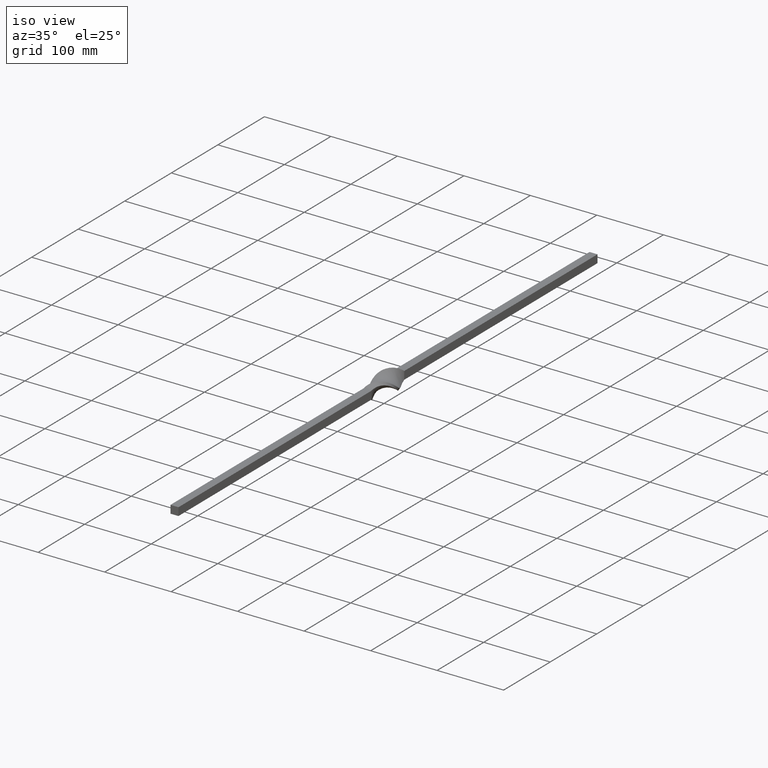
[diagram: clean part render]
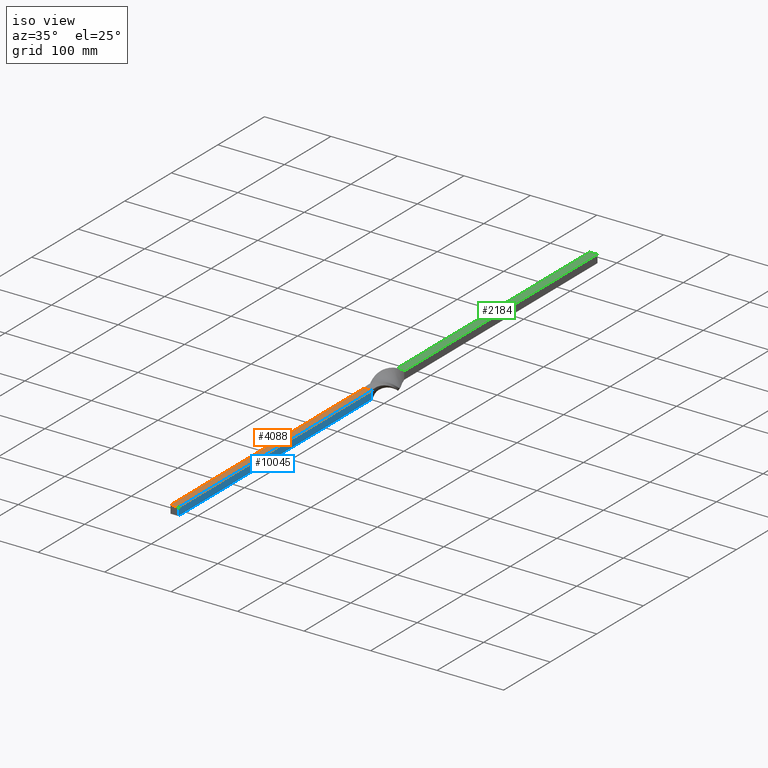
[diagram: same view with three faces highlighted in distinct colors, each labeled with its STEP entity id]
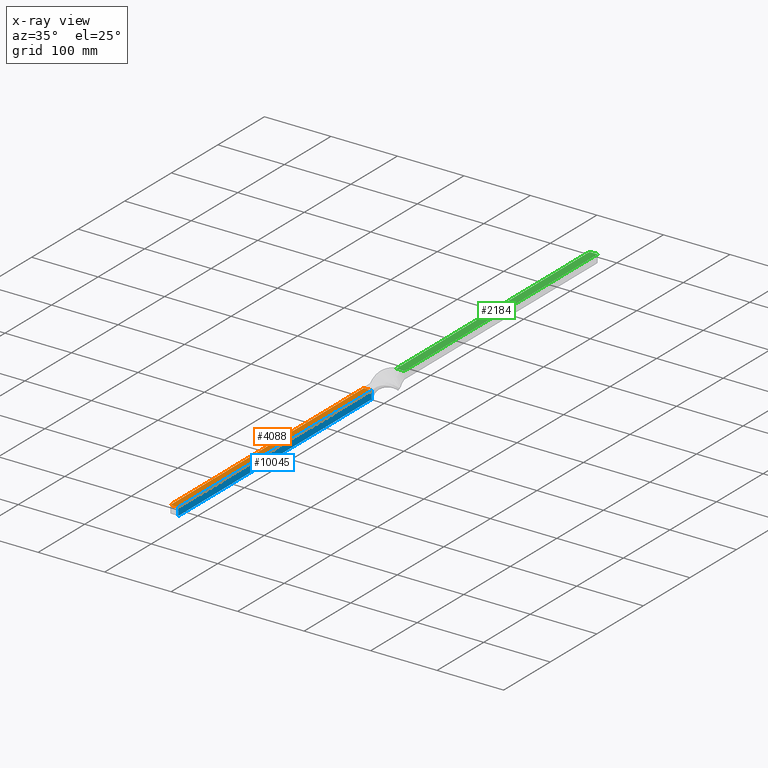
[diagram: x-ray of the same camera — body ghosted, the three highlighted faces saturated]
A machine part, iso view with three faces highlighted in distinct colors.
The next image is the same camera in x-ray (body ghosted, the three faces saturated) — at least one of them is partly hidden behind the body in this view.
Their STEP definitions:

[orange] entity #4088 — the highlighted planar face has unit normal (0, -0, 1).
#832 = FACE_OUTER_BOUND ( 'NONE', #5203, .T. ) ;
#1262 = ORIENTED_EDGE ( 'NONE', *, *, #2307, .T. ) ;
#1352 = DIRECTION ( 'NONE',  ( 0.9999999999971640463, 0.000000000000000000, -2.381548937080192787E-06 ) ) ;
#1365 = EDGE_CURVE ( 'NONE', #4727, #8123, #7487, .T. ) ;
#1467 = CARTESIAN_POINT ( 'NONE',  ( -1.999985710700691532, -450.0000000000000568, 6.000004763080856840 ) ) ;
#1710 = ORIENTED_EDGE ( 'NONE', *, *, #8724, .F. ) ;
#1774 = CARTESIAN_POINT ( 'NONE',  ( 6.000014289276624169, -450.0000000000000000, 5.999985710689351492 ) ) ;
#1795 = CARTESIAN_POINT ( 'NONE',  ( -5.999985710689361262, -34.99999999999987921, 6.000014289276609070 ) ) ;
#1972 = CARTESIAN_POINT ( 'NONE',  ( -5.999985710689347052, -173.3333333333331439, 6.000014289276601964 ) ) ;
#2016 = CARTESIAN_POINT ( 'NONE',  ( 6.000014289276624169, -450.0000000000000000, 5.999985710689351492 ) ) ;
#2307 = EDGE_CURVE ( 'NONE', #8123, #8806, #6697, .T. ) ;
#2331 = CARTESIAN_POINT ( 'NONE',  ( -5.999985710689346163, -450.0000000000000000, 6.000014289276597523 ) ) ;
#3051 = CARTESIAN_POINT ( 'NONE',  ( -5.999985710689346163, -34.99999999999986500, 6.000014289276606405 ) ) ;
#3845 = CARTESIAN_POINT ( 'NONE',  ( -5.999985710689361262, -34.99999999999987921, 6.000014289276609070 ) ) ;
#4088 = ADVANCED_FACE ( 'NONE', ( #832 ), #4526, .T. ) ;
#4526 = PLANE ( 'NONE',  #5888 ) ;
#4582 = ORIENTED_EDGE ( 'NONE', *, *, #9693, .F. ) ;
#4727 = VERTEX_POINT ( 'NONE', #1795 ) ;
#5203 = EDGE_LOOP ( 'NONE', ( #1262, #4582, #1710, #6562 ) ) ;
#5290 = VECTOR ( 'NONE', #1352, 1000.000000000000227 ) ;
#5500 = CARTESIAN_POINT ( 'NONE',  ( -5.999985710689346163, -450.0000000000000000, 6.000014289276597523 ) ) ;
#5517 = CARTESIAN_POINT ( 'NONE',  ( 6.000014289276623281, -311.6666666666670835, 5.999985710689359486 ) ) ;
#5802 = CARTESIAN_POINT ( 'NONE',  ( 2.000014289287967539, -450.0000000000001705, 5.999995236885095728 ) ) ;
#5837 = B_SPLINE_CURVE_WITH_KNOTS ( 'NONE', 3,
 ( #10743, #8955, #5517, #2016 ),
 .UNSPECIFIED., .F., .F.,
 ( 4, 4 ),
 ( 0.4669705627484773136, 0.8819705627484772936 ),
 .UNSPECIFIED. ) ;
#5888 = AXIS2_PLACEMENT_3D ( 'NONE', #5500, #9883, #8171 ) ;
#6562 = ORIENTED_EDGE ( 'NONE', *, *, #1365, .T. ) ;
#6596 = CARTESIAN_POINT ( 'NONE',  ( 6.000014289276609070, -34.99999999999987921, 5.999985710689363039 ) ) ;
#6697 = B_SPLINE_CURVE_WITH_KNOTS ( 'NONE', 3,
 ( #2331, #1467, #5802, #9398 ),
 .UNSPECIFIED., .F., .F.,
 ( 4, 4 ),
 ( 0.000000000000000000, 0.01200000000000000025 ),
 .UNSPECIFIED. ) ;
#7487 = B_SPLINE_CURVE_WITH_KNOTS ( 'NONE', 3,
 ( #3845, #1972, #10846, #9032 ),
 .UNSPECIFIED., .F., .F.,
 ( 4, 4 ),
 ( 0.4669705627484773136, 0.8819705627484772936 ),
 .UNSPECIFIED. ) ;
#8123 = VERTEX_POINT ( 'NONE', #11018 ) ;
#8171 = DIRECTION ( 'NONE',  ( 0.9999999999971640463, 0.000000000000000000, -2.381548937080192787E-06 ) ) ;
#8724 = EDGE_CURVE ( 'NONE', #4727, #10695, #9649, .T. ) ;
#8806 = VERTEX_POINT ( 'NONE', #1774 ) ;
#8955 = CARTESIAN_POINT ( 'NONE',  ( 6.000014289276612622, -173.3333333333331439, 5.999985710689356821 ) ) ;
#9032 = CARTESIAN_POINT ( 'NONE',  ( -5.999985710689346163, -450.0000000000000000, 6.000014289276597523 ) ) ;
#9398 = CARTESIAN_POINT ( 'NONE',  ( 6.000014289276624169, -450.0000000000000000, 5.999985710689351492 ) ) ;
#9649 = LINE ( 'NONE', #3051, #5290 ) ;
#9693 = EDGE_CURVE ( 'NONE', #10695, #8806, #5837, .T. ) ;
#9883 = DIRECTION ( 'NONE',  ( 2.381548937080193211E-06, -2.299022650975940476E-17, 0.9999999999971641573 ) ) ;
#10695 = VERTEX_POINT ( 'NONE', #6596 ) ;
#10743 = CARTESIAN_POINT ( 'NONE',  ( 6.000014289276609070, -34.99999999999987921, 5.999985710689363039 ) ) ;
#10846 = CARTESIAN_POINT ( 'NONE',  ( -5.999985710689363927, -311.6666666666670835, 6.000014289276607293 ) ) ;
#11018 = CARTESIAN_POINT ( 'NONE',  ( -5.999985710689346163, -450.0000000000000000, 6.000014289276597523 ) ) ;

[blue] entity #10045 — the highlighted planar face has unit normal (1, 0, -0).
#482 = EDGE_CURVE ( 'NONE', #10695, #8151, #3182, .T. ) ;
#604 = B_SPLINE_CURVE_WITH_KNOTS ( 'NONE', 3,
 ( #10279, #6742, #1488, #1528 ),
 .UNSPECIFIED., .F., .F.,
 ( 4, 4 ),
 ( 0.4669705627484773136, 0.8819705627484772936 ),
 .UNSPECIFIED. ) ;
#610 = VECTOR ( 'NONE', #788, 1000.000000000000227 ) ;
#788 = DIRECTION ( 'NONE',  ( -2.381548937007912925E-06, 0.000000000000000000, -0.9999999999971640463 ) ) ;
#1010 = EDGE_CURVE ( 'NONE', #10582, #8151, #604, .T. ) ;
#1488 = CARTESIAN_POINT ( 'NONE',  ( 5.999985710689371032, -173.3333333333331439, -6.000014289276607293 ) ) ;
#1528 = CARTESIAN_POINT ( 'NONE',  ( 5.999985708195915812, -34.99999999533305584, -6.000014295125451369 ) ) ;
#1774 = CARTESIAN_POINT ( 'NONE',  ( 6.000014289276624169, -450.0000000000000000, 5.999985710689351492 ) ) ;
#1826 = FACE_OUTER_BOUND ( 'NONE', #7237, .T. ) ;
#2016 = CARTESIAN_POINT ( 'NONE',  ( 6.000014289276624169, -450.0000000000000000, 5.999985710689351492 ) ) ;
#2493 = CARTESIAN_POINT ( 'NONE',  ( 6.000014289276609070, -34.99999999999980815, 5.999985710689352381 ) ) ;
#2934 = B_SPLINE_CURVE_WITH_KNOTS ( 'NONE', 3,
 ( #6215, #3555, #5448, #8007 ),
 .UNSPECIFIED., .F., .F.,
 ( 4, 4 ),
 ( 0.000000000000000000, 0.01200000000000000025 ),
 .UNSPECIFIED. ) ;
#3079 = AXIS2_PLACEMENT_3D ( 'NONE', #5600, #9081, #3744 ) ;
#3182 = LINE ( 'NONE', #2493, #610 ) ;
#3555 = CARTESIAN_POINT ( 'NONE',  ( 6.000004763080885262, -450.0000000000000568, 1.999985710700696417 ) ) ;
#3744 = DIRECTION ( 'NONE',  ( -2.381548937007912925E-06, 0.000000000000000000, -0.9999999999971640463 ) ) ;
#5049 = CARTESIAN_POINT ( 'NONE',  ( 5.999985708195915812, -34.99999999533305584, -6.000014295125451369 ) ) ;
#5448 = CARTESIAN_POINT ( 'NONE',  ( 5.999995236885121486, -450.0000000000001705, -2.000014289287961322 ) ) ;
#5517 = CARTESIAN_POINT ( 'NONE',  ( 6.000014289276623281, -311.6666666666670835, 5.999985710689359486 ) ) ;
#5600 = CARTESIAN_POINT ( 'NONE',  ( 6.000014289276624169, -450.0000000000000000, 5.999985710689352381 ) ) ;
#5738 = ORIENTED_EDGE ( 'NONE', *, *, #1010, .T. ) ;
#5837 = B_SPLINE_CURVE_WITH_KNOTS ( 'NONE', 3,
 ( #10743, #8955, #5517, #2016 ),
 .UNSPECIFIED., .F., .F.,
 ( 4, 4 ),
 ( 0.4669705627484773136, 0.8819705627484772936 ),
 .UNSPECIFIED. ) ;
#6215 = CARTESIAN_POINT ( 'NONE',  ( 6.000014289276624169, -450.0000000000000000, 5.999985710689351492 ) ) ;
#6352 = EDGE_CURVE ( 'NONE', #8806, #10582, #2934, .T. ) ;
#6596 = CARTESIAN_POINT ( 'NONE',  ( 6.000014289276609070, -34.99999999999987921, 5.999985710689363039 ) ) ;
#6742 = CARTESIAN_POINT ( 'NONE',  ( 5.999985710689376361, -311.6666666666670835, -6.000014289276620616 ) ) ;
#7237 = EDGE_LOOP ( 'NONE', ( #10301, #5738, #8303, #9769 ) ) ;
#8007 = CARTESIAN_POINT ( 'NONE',  ( 5.999985710689379026, -450.0000000000000000, -6.000014289276617951 ) ) ;
#8151 = VERTEX_POINT ( 'NONE', #5049 ) ;
#8303 = ORIENTED_EDGE ( 'NONE', *, *, #482, .F. ) ;
#8806 = VERTEX_POINT ( 'NONE', #1774 ) ;
#8955 = CARTESIAN_POINT ( 'NONE',  ( 6.000014289276612622, -173.3333333333331439, 5.999985710689356821 ) ) ;
#9081 = DIRECTION ( 'NONE',  ( 0.9999999999971641573, 3.553053558571017588E-17, -2.381548937007913349E-06 ) ) ;
#9693 = EDGE_CURVE ( 'NONE', #10695, #8806, #5837, .T. ) ;
#9769 = ORIENTED_EDGE ( 'NONE', *, *, #9693, .T. ) ;
#9788 = CARTESIAN_POINT ( 'NONE',  ( 5.999985710689379026, -450.0000000000000000, -6.000014289276617951 ) ) ;
#10045 = ADVANCED_FACE ( 'NONE', ( #1826 ), #10819, .T. ) ;
#10279 = CARTESIAN_POINT ( 'NONE',  ( 5.999985710689379026, -450.0000000000000000, -6.000014289276617951 ) ) ;
#10301 = ORIENTED_EDGE ( 'NONE', *, *, #6352, .T. ) ;
#10582 = VERTEX_POINT ( 'NONE', #9788 ) ;
#10695 = VERTEX_POINT ( 'NONE', #6596 ) ;
#10743 = CARTESIAN_POINT ( 'NONE',  ( 6.000014289276609070, -34.99999999999987921, 5.999985710689363039 ) ) ;
#10819 = PLANE ( 'NONE',  #3079 ) ;

[green] entity #2184 — the highlighted planar face has unit normal (-0, -0, -1).
#72 = CARTESIAN_POINT ( 'NONE',  ( -5.999985710689331064, 34.99999999999999289, 6.000014285811234416 ) ) ;
#428 = CARTESIAN_POINT ( 'NONE',  ( 6.000014289276637491, 450.0000000000000000, 5.999985710689304419 ) ) ;
#993 = ORIENTED_EDGE ( 'NONE', *, *, #8933, .T. ) ;
#1220 = CARTESIAN_POINT ( 'NONE',  ( 6.000014289276637491, 450.0000000000000000, 5.999985710689304419 ) ) ;
#1695 = DIRECTION ( 'NONE',  ( -0.9999999999971640463, 0.000000000000000000, 2.381548944163647263E-06 ) ) ;
#1852 = ORIENTED_EDGE ( 'NONE', *, *, #9079, .F. ) ;
#2127 = ORIENTED_EDGE ( 'NONE', *, *, #9857, .T. ) ;
#2184 = ADVANCED_FACE ( 'NONE', ( #4151 ), #9536, .F. ) ;
#2438 = EDGE_LOOP ( 'NONE', ( #993, #1852, #8661, #2127 ) ) ;
#2456 = CARTESIAN_POINT ( 'NONE',  ( -5.999985710689331064, 34.99999999999999289, 6.000014285811234416 ) ) ;
#3210 = CARTESIAN_POINT ( 'NONE',  ( -5.999985710689331952, 450.0000000000000000, 6.000014289276634827 ) ) ;
#3844 = CARTESIAN_POINT ( 'NONE',  ( 6.000014286162812738, 35.00000000000000711, 5.999985710689326623 ) ) ;
#4151 = FACE_OUTER_BOUND ( 'NONE', #2438, .T. ) ;
#4495 = CARTESIAN_POINT ( 'NONE',  ( -5.999985710689331952, 450.0000000000000000, 6.000014289276634827 ) ) ;
#4728 = VERTEX_POINT ( 'NONE', #4495 ) ;
#4812 = CARTESIAN_POINT ( 'NONE',  ( 6.000014289276637491, 450.0000000000000000, 5.999985710689304419 ) ) ;
#4863 = LINE ( 'NONE', #10691, #8008 ) ;
#4990 = VERTEX_POINT ( 'NONE', #72 ) ;
#5005 = CARTESIAN_POINT ( 'NONE',  ( -5.999985710689326623, 311.6666666666668561, 6.000014289276640156 ) ) ;
#5146 = EDGE_CURVE ( 'NONE', #4728, #10605, #6185, .T. ) ;
#5665 = CARTESIAN_POINT ( 'NONE',  ( 6.000014289276640156, 311.6666666666668561, 5.999985710689312413 ) ) ;
#5677 = B_SPLINE_CURVE_WITH_KNOTS ( 'NONE', 3,
 ( #4812, #5665, #9148, #3844 ),
 .UNSPECIFIED., .F., .F.,
 ( 4, 4 ),
 ( -0.8819705627484772936, -0.4669705627484773136 ),
 .UNSPECIFIED. ) ;
#6185 = B_SPLINE_CURVE_WITH_KNOTS ( 'NONE', 3,
 ( #10931, #10137, #6564, #428 ),
 .UNSPECIFIED., .F., .F.,
 ( 4, 4 ),
 ( -0.01200000000000000025, 0.000000000000000000 ),
 .UNSPECIFIED. ) ;
#6564 = CARTESIAN_POINT ( 'NONE',  ( 2.000014289287983971, 450.0000000000000568, 5.999995236885085959 ) ) ;
#6755 = AXIS2_PLACEMENT_3D ( 'NONE', #6955, #7707, #1695 ) ;
#6840 = CARTESIAN_POINT ( 'NONE',  ( -5.999985710689331064, 173.3333333333332291, 6.000014289276646373 ) ) ;
#6955 = CARTESIAN_POINT ( 'NONE',  ( 6.000014289276647261, 35.00000000000000000, 5.999985710689319518 ) ) ;
#7265 = DIRECTION ( 'NONE',  ( 0.9999999999971640463, -0.000000000000000000, -2.381548944163647263E-06 ) ) ;
#7590 = B_SPLINE_CURVE_WITH_KNOTS ( 'NONE', 3,
 ( #3210, #5005, #6840, #2456 ),
 .UNSPECIFIED., .F., .F.,
 ( 4, 4 ),
 ( -0.8819705627484772936, -0.4669705627484773136 ),
 .UNSPECIFIED. ) ;
#7707 = DIRECTION ( 'NONE',  ( -2.381548944163647687E-06, -3.553053558571034844E-17, -0.9999999999971641573 ) ) ;
#8008 = VECTOR ( 'NONE', #7265, 1000.000000000000227 ) ;
#8222 = CARTESIAN_POINT ( 'NONE',  ( 6.000014286162812738, 35.00000000000000711, 5.999985710689326623 ) ) ;
#8661 = ORIENTED_EDGE ( 'NONE', *, *, #5146, .F. ) ;
#8933 = EDGE_CURVE ( 'NONE', #4990, #10634, #4863, .T. ) ;
#9079 = EDGE_CURVE ( 'NONE', #10605, #10634, #5677, .T. ) ;
#9148 = CARTESIAN_POINT ( 'NONE',  ( 6.000014289276649926, 173.3333333333332291, 5.999985710689316853 ) ) ;
#9536 = PLANE ( 'NONE',  #6755 ) ;
#9857 = EDGE_CURVE ( 'NONE', #4728, #4990, #7590, .T. ) ;
#10137 = CARTESIAN_POINT ( 'NONE',  ( -1.999985710700676433, 450.0000000000001705, 6.000004763080851511 ) ) ;
#10605 = VERTEX_POINT ( 'NONE', #1220 ) ;
#10634 = VERTEX_POINT ( 'NONE', #8222 ) ;
#10691 = CARTESIAN_POINT ( 'NONE',  ( 6.000014289276647261, 35.00000000000000000, 5.999985710689319518 ) ) ;
#10931 = CARTESIAN_POINT ( 'NONE',  ( -5.999985710689331952, 450.0000000000000000, 6.000014289276634827 ) ) ;